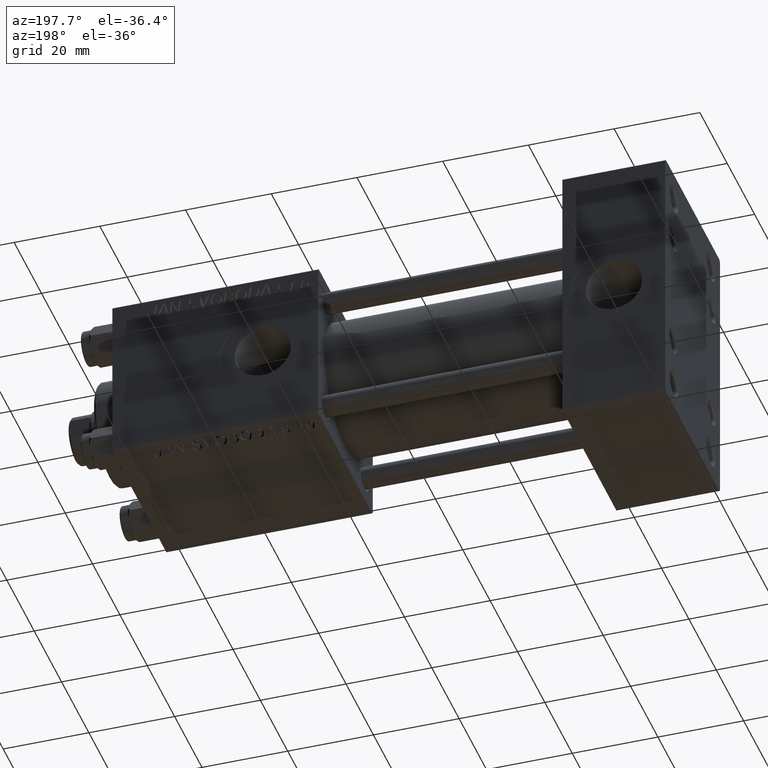
[diagram: clean part render]
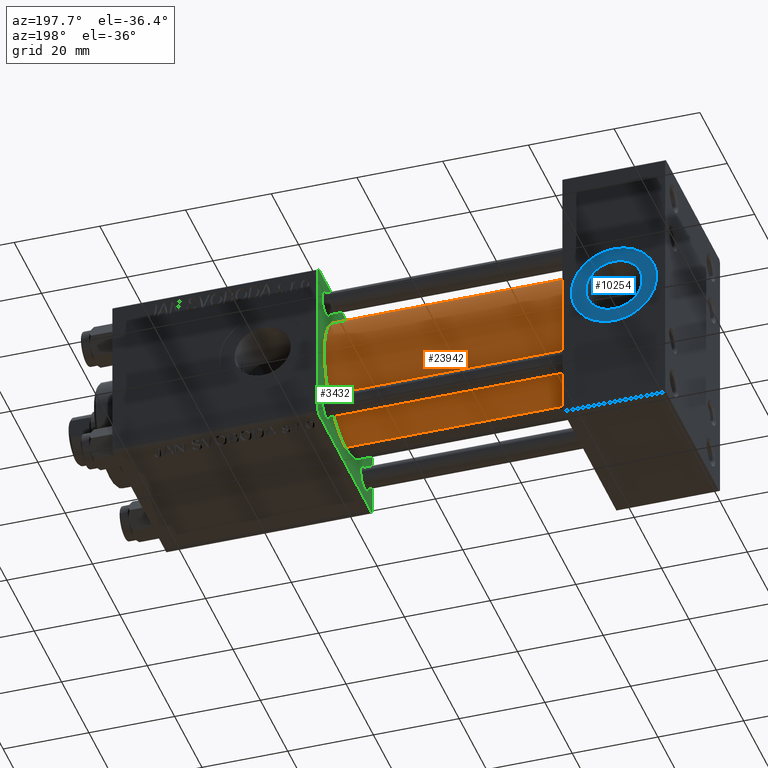
[diagram: same view with three faces highlighted in distinct colors, each labeled with its STEP entity id]
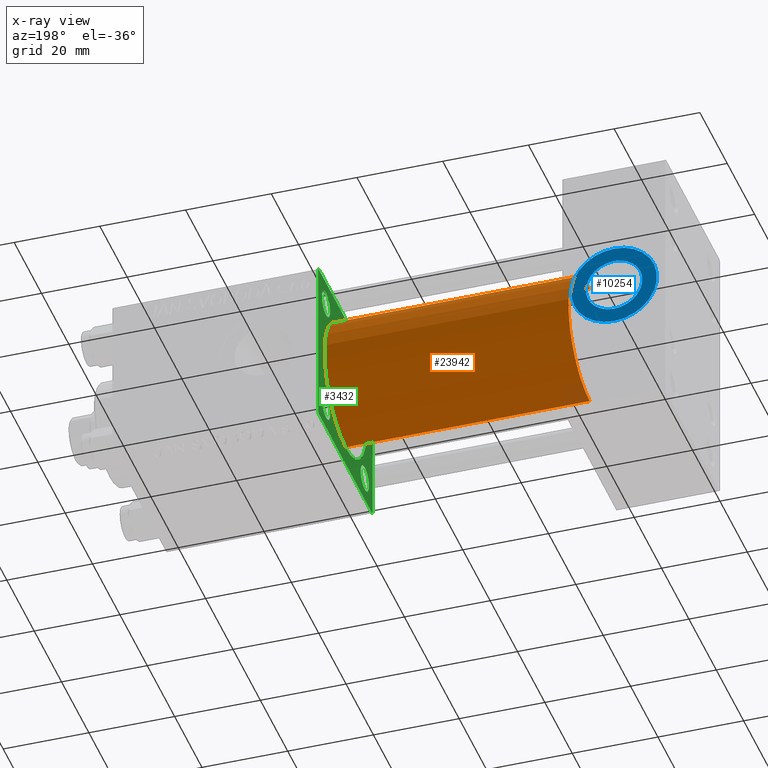
[diagram: x-ray of the same camera — body ghosted, the three highlighted faces saturated]
A machine part, auxiliary view with three faces highlighted in distinct colors.
The next image is the same camera in x-ray (body ghosted, the three faces saturated) — at least one of them is partly hidden behind the body in this view.
Their STEP definitions:

[orange] entity #23942 — the highlighted cylindrical surface (partial cylindrical patch) has radius 15.5 mm, axis along (-1, -0, -0).
#72 = EDGE_CURVE ( 'NONE', #4075, #43670, #28349, .T. ) ;
#3458 = ORIENTED_EDGE ( 'NONE', *, *, #72, .T. ) ;
#4075 = VERTEX_POINT ( 'NONE', #9993 ) ;
#4509 = CARTESIAN_POINT ( 'NONE',  ( 81.00000000000000000, -2.602085213965210642E-15, 15.50000000000000000 ) ) ;
#5151 = ORIENTED_EDGE ( 'NONE', *, *, #13991, .F. ) ;
#5420 = DIRECTION ( 'NONE',  ( 0.000000000000000000, 0.000000000000000000, 1.000000000000000000 ) ) ;
#6160 = ORIENTED_EDGE ( 'NONE', *, *, #17701, .F. ) ;
#9993 = CARTESIAN_POINT ( 'NONE',  ( 81.00000000000000000, -7.038826752868134786E-16, -15.50000000000000000 ) ) ;
#11087 = DIRECTION ( 'NONE',  ( 0.000000000000000000, 0.000000000000000000, -1.000000000000000000 ) ) ;
#11352 = ORIENTED_EDGE ( 'NONE', *, *, #48196, .T. ) ;
#11941 = CARTESIAN_POINT ( 'NONE',  ( 81.00000000000000000, -2.602085213965210642E-15, 0.000000000000000000 ) ) ;
#12437 = AXIS2_PLACEMENT_3D ( 'NONE', #12736, #32421, #5420 ) ;
#12736 = CARTESIAN_POINT ( 'NONE',  ( 24.00000000000000000, -2.602085213965210642E-15, 0.000000000000000000 ) ) ;
#13217 = CARTESIAN_POINT ( 'NONE',  ( 81.00000000000000000, -7.038826752868134786E-16, -15.50000000000000000 ) ) ;
#13888 = CARTESIAN_POINT ( 'NONE',  ( 24.00000000000000000, -7.038826752868134786E-16, -15.50000000000000000 ) ) ;
#13991 = EDGE_CURVE ( 'NONE', #4075, #31412, #46470, .T. ) ;
#14987 = FACE_OUTER_BOUND ( 'NONE', #36761, .T. ) ;
#17701 = EDGE_CURVE ( 'NONE', #31412, #43049, #49335, .T. ) ;
#18742 = CARTESIAN_POINT ( 'NONE',  ( 24.00000000000000000, -2.602085213965210642E-15, 15.50000000000000000 ) ) ;
#23942 = ADVANCED_FACE ( 'NONE', ( #14987 ), #39183, .T. ) ;
#24819 = DIRECTION ( 'NONE',  ( -1.000000000000000000, -0.000000000000000000, -0.000000000000000000 ) ) ;
#28349 = LINE ( 'NONE', #13217, #34827 ) ;
#29635 = CARTESIAN_POINT ( 'NONE',  ( 81.00000000000000000, -2.602085213965210642E-15, 15.50000000000000000 ) ) ;
#31412 = VERTEX_POINT ( 'NONE', #4509 ) ;
#32421 = DIRECTION ( 'NONE',  ( 1.000000000000000000, 0.000000000000000000, 0.000000000000000000 ) ) ;
#34827 = VECTOR ( 'NONE', #24819, 1000.000000000000000 ) ;
#36076 = VECTOR ( 'NONE', #44790, 1000.000000000000000 ) ;
#36761 = EDGE_LOOP ( 'NONE', ( #5151, #3458, #11352, #6160 ) ) ;
#36798 = AXIS2_PLACEMENT_3D ( 'NONE', #41887, #42377, #11087 ) ;
#38695 = DIRECTION ( 'NONE',  ( 0.000000000000000000, 0.000000000000000000, 1.000000000000000000 ) ) ;
#39041 = CIRCLE ( 'NONE', #12437, 15.50000000000000000 ) ;
#39183 = CYLINDRICAL_SURFACE ( 'NONE', #40005, 15.50000000000000000 ) ;
#40005 = AXIS2_PLACEMENT_3D ( 'NONE', #11941, #49572, #38695 ) ;
#41887 = CARTESIAN_POINT ( 'NONE',  ( 81.00000000000000000, -2.602085213965210642E-15, 0.000000000000000000 ) ) ;
#42377 = DIRECTION ( 'NONE',  ( 1.000000000000000000, 0.000000000000000000, 0.000000000000000000 ) ) ;
#43049 = VERTEX_POINT ( 'NONE', #18742 ) ;
#43670 = VERTEX_POINT ( 'NONE', #13888 ) ;
#44790 = DIRECTION ( 'NONE',  ( -1.000000000000000000, -0.000000000000000000, -0.000000000000000000 ) ) ;
#46470 = CIRCLE ( 'NONE', #36798, 15.50000000000000000 ) ;
#48196 = EDGE_CURVE ( 'NONE', #43670, #43049, #39041, .T. ) ;
#49335 = LINE ( 'NONE', #29635, #36076 ) ;
#49572 = DIRECTION ( 'NONE',  ( -1.000000000000000000, -0.000000000000000000, -0.000000000000000000 ) ) ;

[blue] entity #10254 — the highlighted planar face has unit normal (0, 1, 0).
#203 = DIRECTION ( 'NONE',  ( 0.000000000000000000, 0.000000000000000000, 1.000000000000000000 ) ) ;
#310 = AXIS2_PLACEMENT_3D ( 'NONE', #17504, #32913, #29107 ) ;
#698 = CARTESIAN_POINT ( 'NONE',  ( 12.00000000000000000, 19.79999999999999716, 0.000000000000000000 ) ) ;
#2087 = ORIENTED_EDGE ( 'NONE', *, *, #25077, .T. ) ;
#2274 = ORIENTED_EDGE ( 'NONE', *, *, #45952, .T. ) ;
#2722 = VERTEX_POINT ( 'NONE', #25251 ) ;
#3083 = VERTEX_POINT ( 'NONE', #44069 ) ;
#3564 = CIRCLE ( 'NONE', #310, 6.579999999999998295 ) ;
#4143 = FACE_OUTER_BOUND ( 'NONE', #31945, .T. ) ;
#4339 = EDGE_CURVE ( 'NONE', #31469, #20534, #3564, .T. ) ;
#4634 = FACE_BOUND ( 'NONE', #12507, .T. ) ;
#5948 = ORIENTED_EDGE ( 'NONE', *, *, #45120, .F. ) ;
#10254 = ADVANCED_FACE ( 'NONE', ( #4634, #4143 ), #24295, .T. ) ;
#10553 = ORIENTED_EDGE ( 'NONE', *, *, #4339, .F. ) ;
#10818 = DIRECTION ( 'NONE',  ( 0.000000000000000000, 0.000000000000000000, 1.000000000000000000 ) ) ;
#11423 = DIRECTION ( 'NONE',  ( 0.000000000000000000, 1.000000000000000000, 0.000000000000000000 ) ) ;
#12507 = EDGE_LOOP ( 'NONE', ( #5948, #10553 ) ) ;
#15362 = DIRECTION ( 'NONE',  ( 0.000000000000000000, 1.000000000000000000, 0.000000000000000000 ) ) ;
#17109 = CIRCLE ( 'NONE', #20341, 10.00000000000000000 ) ;
#17504 = CARTESIAN_POINT ( 'NONE',  ( 12.00000000000000000, 19.79999999999999716, 0.000000000000000000 ) ) ;
#19490 = CIRCLE ( 'NONE', #37218, 6.579999999999998295 ) ;
#19615 = DIRECTION ( 'NONE',  ( 0.000000000000000000, 1.000000000000000000, 0.000000000000000000 ) ) ;
#19710 = AXIS2_PLACEMENT_3D ( 'NONE', #38967, #23560, #27356 ) ;
#20341 = AXIS2_PLACEMENT_3D ( 'NONE', #49948, #15362, #10818 ) ;
#20534 = VERTEX_POINT ( 'NONE', #43806 ) ;
#23560 = DIRECTION ( 'NONE',  ( 0.000000000000000000, 1.000000000000000000, 0.000000000000000000 ) ) ;
#24295 = PLANE ( 'NONE',  #19710 ) ;
#25077 = EDGE_CURVE ( 'NONE', #2722, #3083, #40039, .T. ) ;
#25251 = CARTESIAN_POINT ( 'NONE',  ( 12.00000000000000178, 19.79999999999999716, -10.00000000000000000 ) ) ;
#27356 = DIRECTION ( 'NONE',  ( 0.000000000000000000, -0.000000000000000000, 1.000000000000000000 ) ) ;
#29107 = DIRECTION ( 'NONE',  ( 0.000000000000000000, 0.000000000000000000, 1.000000000000000000 ) ) ;
#31469 = VERTEX_POINT ( 'NONE', #37271 ) ;
#31945 = EDGE_LOOP ( 'NONE', ( #2274, #2087 ) ) ;
#32913 = DIRECTION ( 'NONE',  ( 0.000000000000000000, 1.000000000000000000, 0.000000000000000000 ) ) ;
#37218 = AXIS2_PLACEMENT_3D ( 'NONE', #698, #19615, #203 ) ;
#37271 = CARTESIAN_POINT ( 'NONE',  ( 12.00000000000000000, 19.79999999999999716, -6.579999999999998295 ) ) ;
#38967 = CARTESIAN_POINT ( 'NONE',  ( 12.00000000000000000, 19.79999999999999716, 0.000000000000000000 ) ) ;
#40039 = CIRCLE ( 'NONE', #41673, 10.00000000000000000 ) ;
#41673 = AXIS2_PLACEMENT_3D ( 'NONE', #44999, #11423, #49795 ) ;
#43806 = CARTESIAN_POINT ( 'NONE',  ( 12.00000000000000000, 19.79999999999999716, 6.579999999999998295 ) ) ;
#44069 = CARTESIAN_POINT ( 'NONE',  ( 12.00000000000000000, 19.79999999999999716, 10.00000000000000000 ) ) ;
#44999 = CARTESIAN_POINT ( 'NONE',  ( 12.00000000000000000, 19.79999999999999716, 0.000000000000000000 ) ) ;
#45120 = EDGE_CURVE ( 'NONE', #20534, #31469, #19490, .T. ) ;
#45952 = EDGE_CURVE ( 'NONE', #3083, #2722, #17109, .T. ) ;
#49795 = DIRECTION ( 'NONE',  ( 0.000000000000000000, 0.000000000000000000, 1.000000000000000000 ) ) ;
#49948 = CARTESIAN_POINT ( 'NONE',  ( 12.00000000000000000, 19.79999999999999716, 0.000000000000000000 ) ) ;

[green] entity #3432 — the highlighted planar face has unit normal (-1, 0, 0).
#34 = LINE ( 'NONE', #23720, #12760 ) ;
#177 = ORIENTED_EDGE ( 'NONE', *, *, #3962, .T. ) ;
#199 = DIRECTION ( 'NONE',  ( 1.000000000000000000, 0.000000000000000000, 0.000000000000000000 ) ) ;
#456 = LINE ( 'NONE', #47132, #16834 ) ;
#472 = DIRECTION ( 'NONE',  ( 0.000000000000000000, -1.000000000000000000, 0.000000000000000000 ) ) ;
#566 = AXIS2_PLACEMENT_3D ( 'NONE', #46508, #19973, #19479 ) ;
#590 = VECTOR ( 'NONE', #20744, 1000.000000000000000 ) ;
#679 = DIRECTION ( 'NONE',  ( 1.000000000000000000, 0.000000000000000000, 0.000000000000000000 ) ) ;
#719 = CIRCLE ( 'NONE', #23189, 2.999999999999973355 ) ;
#1119 = DIRECTION ( 'NONE',  ( 0.000000000000000000, 0.000000000000000000, 1.000000000000000000 ) ) ;
#1399 = EDGE_CURVE ( 'NONE', #43385, #38712, #10718, .T. ) ;
#1579 = CARTESIAN_POINT ( 'NONE',  ( 81.00000000000000000, 14.15000000000000036, 14.15000000000000036 ) ) ;
#1591 = EDGE_LOOP ( 'NONE', ( #12753, #46845, #4909, #4346, #39925, #11893, #27125, #20661 ) ) ;
#1910 = VERTEX_POINT ( 'NONE', #43525 ) ;
#2163 = CARTESIAN_POINT ( 'NONE',  ( 81.00000000000000000, 14.15000000000000036, -11.15000000000001101 ) ) ;
#2986 = EDGE_CURVE ( 'NONE', #31412, #4075, #27676, .T. ) ;
#3432 = ADVANCED_FACE ( 'NONE', ( #14914, #18936, #33585, #6832, #14660, #49246 ), #37375, .T. ) ;
#3962 = EDGE_CURVE ( 'NONE', #32750, #39260, #44653, .T. ) ;
#4075 = VERTEX_POINT ( 'NONE', #9993 ) ;
#4139 = DIRECTION ( 'NONE',  ( -0.000000000000000000, -0.7071067811865474617, -0.7071067811865474617 ) ) ;
#4346 = ORIENTED_EDGE ( 'NONE', *, *, #14124, .T. ) ;
#4370 = CARTESIAN_POINT ( 'NONE',  ( 81.00000000000000000, 19.99999999999999645, 20.00000000000000000 ) ) ;
#4404 = VERTEX_POINT ( 'NONE', #42232 ) ;
#4509 = CARTESIAN_POINT ( 'NONE',  ( 81.00000000000000000, -2.602085213965210642E-15, 15.50000000000000000 ) ) ;
#4909 = ORIENTED_EDGE ( 'NONE', *, *, #29205, .F. ) ;
#4995 = LINE ( 'NONE', #8534, #29504 ) ;
#5603 = VERTEX_POINT ( 'NONE', #22811 ) ;
#6616 = ORIENTED_EDGE ( 'NONE', *, *, #33513, .T. ) ;
#6832 = FACE_BOUND ( 'NONE', #45453, .T. ) ;
#7481 = AXIS2_PLACEMENT_3D ( 'NONE', #1579, #48493, #9876 ) ;
#7568 = CARTESIAN_POINT ( 'NONE',  ( 81.00000000000000000, -20.00000000000000355, 19.49999999999999645 ) ) ;
#7725 = CARTESIAN_POINT ( 'NONE',  ( 81.00000000000000000, 19.99999999999999645, 19.50000000000002842 ) ) ;
#7882 = ORIENTED_EDGE ( 'NONE', *, *, #45774, .T. ) ;
#8020 = CARTESIAN_POINT ( 'NONE',  ( 81.00000000000000000, -2.602085213965210642E-15, 0.000000000000000000 ) ) ;
#8095 = CARTESIAN_POINT ( 'NONE',  ( 81.00000000000000000, 19.99999999999999645, -19.50000000000000000 ) ) ;
#8534 = CARTESIAN_POINT ( 'NONE',  ( 81.00000000000000000, -19.75000000000027711, 19.74999999999973355 ) ) ;
#8544 = VECTOR ( 'NONE', #472, 1000.000000000000000 ) ;
#8787 = EDGE_CURVE ( 'NONE', #22413, #12880, #22743, .T. ) ;
#9255 = CARTESIAN_POINT ( 'NONE',  ( 81.00000000000000000, 14.15000000000000036, -14.15000000000000036 ) ) ;
#9876 = DIRECTION ( 'NONE',  ( 0.000000000000000000, 0.000000000000000000, 1.000000000000000000 ) ) ;
#9993 = CARTESIAN_POINT ( 'NONE',  ( 81.00000000000000000, -7.038826752868134786E-16, -15.50000000000000000 ) ) ;
#10320 = DIRECTION ( 'NONE',  ( 0.000000000000000000, 0.000000000000000000, 1.000000000000000000 ) ) ;
#10417 = VERTEX_POINT ( 'NONE', #8095 ) ;
#10718 = CIRCLE ( 'NONE', #7481, 2.999999999999948930 ) ;
#10846 = ORIENTED_EDGE ( 'NONE', *, *, #49909, .T. ) ;
#11087 = DIRECTION ( 'NONE',  ( 0.000000000000000000, 0.000000000000000000, -1.000000000000000000 ) ) ;
#11140 = DIRECTION ( 'NONE',  ( 0.000000000000000000, 0.7071067811865474617, -0.7071067811865474617 ) ) ;
#11893 = ORIENTED_EDGE ( 'NONE', *, *, #8787, .T. ) ;
#12288 = DIRECTION ( 'NONE',  ( 0.000000000000000000, 0.000000000000000000, -1.000000000000000000 ) ) ;
#12322 = DIRECTION ( 'NONE',  ( -0.000000000000000000, 0.7071067811865378028, 0.7071067811865573427 ) ) ;
#12518 = EDGE_CURVE ( 'NONE', #26665, #1910, #31742, .T. ) ;
#12753 = ORIENTED_EDGE ( 'NONE', *, *, #12518, .T. ) ;
#12760 = VECTOR ( 'NONE', #35096, 999.9999999999998863 ) ;
#12794 = DIRECTION ( 'NONE',  ( 0.000000000000000000, 0.000000000000000000, 1.000000000000000000 ) ) ;
#12880 = VERTEX_POINT ( 'NONE', #7725 ) ;
#13147 = CIRCLE ( 'NONE', #41372, 2.999999999999990674 ) ;
#13470 = DIRECTION ( 'NONE',  ( 1.000000000000000000, 0.000000000000000000, 0.000000000000000000 ) ) ;
#13991 = EDGE_CURVE ( 'NONE', #4075, #31412, #46470, .T. ) ;
#14124 = EDGE_CURVE ( 'NONE', #24538, #42047, #4995, .T. ) ;
#14333 = DIRECTION ( 'NONE',  ( 1.000000000000000000, 0.000000000000000000, 0.000000000000000000 ) ) ;
#14527 = ORIENTED_EDGE ( 'NONE', *, *, #25264, .T. ) ;
#14568 = CIRCLE ( 'NONE', #41989, 2.999999999999973355 ) ;
#14584 = CARTESIAN_POINT ( 'NONE',  ( 81.00000000000000000, -14.15000000000000036, 14.15000000000000036 ) ) ;
#14660 = FACE_BOUND ( 'NONE', #48078, .T. ) ;
#14914 = FACE_BOUND ( 'NONE', #49522, .T. ) ;
#15392 = VERTEX_POINT ( 'NONE', #31455 ) ;
#15590 = AXIS2_PLACEMENT_3D ( 'NONE', #8020, #199, #12288 ) ;
#16218 = EDGE_CURVE ( 'NONE', #12880, #10417, #35650, .T. ) ;
#16518 = VERTEX_POINT ( 'NONE', #22370 ) ;
#16834 = VECTOR ( 'NONE', #31237, 1000.000000000000000 ) ;
#17066 = DIRECTION ( 'NONE',  ( 0.000000000000000000, 8.673617379884036705E-17, -1.000000000000000000 ) ) ;
#17248 = CARTESIAN_POINT ( 'NONE',  ( 81.00000000000000000, -14.15000000000000036, -14.15000000000000036 ) ) ;
#17938 = EDGE_CURVE ( 'NONE', #10417, #26665, #23319, .T. ) ;
#18042 = VECTOR ( 'NONE', #11140, 1000.000000000000114 ) ;
#18936 = FACE_BOUND ( 'NONE', #25488, .T. ) ;
#19011 = EDGE_CURVE ( 'NONE', #5603, #15392, #44175, .T. ) ;
#19479 = DIRECTION ( 'NONE',  ( 0.000000000000000000, 0.000000000000000000, 1.000000000000000000 ) ) ;
#19480 = ORIENTED_EDGE ( 'NONE', *, *, #19011, .T. ) ;
#19973 = DIRECTION ( 'NONE',  ( 1.000000000000000000, 0.000000000000000000, 0.000000000000000000 ) ) ;
#20661 = ORIENTED_EDGE ( 'NONE', *, *, #17938, .T. ) ;
#20744 = DIRECTION ( 'NONE',  ( 0.000000000000000000, 0.000000000000000000, -1.000000000000000000 ) ) ;
#21668 = CARTESIAN_POINT ( 'NONE',  ( 81.00000000000000000, 19.50000000000002487, 20.00000000000000000 ) ) ;
#21893 = DIRECTION ( 'NONE',  ( 0.000000000000000000, 0.000000000000000000, 1.000000000000000000 ) ) ;
#22229 = CARTESIAN_POINT ( 'NONE',  ( 81.00000000000000000, 0.000000000000000000, 0.000000000000000000 ) ) ;
#22370 = CARTESIAN_POINT ( 'NONE',  ( 81.00000000000000000, -14.15000000000000036, 11.15000000000002700 ) ) ;
#22413 = VERTEX_POINT ( 'NONE', #21668 ) ;
#22422 = AXIS2_PLACEMENT_3D ( 'NONE', #24122, #679, #35741 ) ;
#22743 = LINE ( 'NONE', #45725, #18042 ) ;
#22811 = CARTESIAN_POINT ( 'NONE',  ( 81.00000000000000000, -14.15000000000000036, -11.15000000000001101 ) ) ;
#23189 = AXIS2_PLACEMENT_3D ( 'NONE', #14584, #14333, #21893 ) ;
#23255 = VECTOR ( 'NONE', #17066, 1000.000000000000000 ) ;
#23319 = LINE ( 'NONE', #38714, #49813 ) ;
#23720 = CARTESIAN_POINT ( 'NONE',  ( 81.00000000000000000, -19.74999999999972644, -19.75000000000027356 ) ) ;
#24122 = CARTESIAN_POINT ( 'NONE',  ( 81.00000000000000000, -14.15000000000000036, -14.15000000000000036 ) ) ;
#24306 = CARTESIAN_POINT ( 'NONE',  ( 81.00000000000000000, -19.50000000000001776, 19.99999999999999645 ) ) ;
#24538 = VERTEX_POINT ( 'NONE', #7568 ) ;
#25264 = EDGE_CURVE ( 'NONE', #38712, #43385, #35217, .T. ) ;
#25488 = EDGE_LOOP ( 'NONE', ( #14527, #47774 ) ) ;
#25763 = DIRECTION ( 'NONE',  ( -0.000000000000000000, 0.000000000000000000, 1.000000000000000000 ) ) ;
#26205 = CARTESIAN_POINT ( 'NONE',  ( 81.00000000000000000, 19.49999999999999645, -20.00000000000000000 ) ) ;
#26665 = VERTEX_POINT ( 'NONE', #26205 ) ;
#26671 = ORIENTED_EDGE ( 'NONE', *, *, #38720, .T. ) ;
#27125 = ORIENTED_EDGE ( 'NONE', *, *, #16218, .T. ) ;
#27323 = CIRCLE ( 'NONE', #46685, 2.999999999999990674 ) ;
#27463 = CARTESIAN_POINT ( 'NONE',  ( 81.00000000000000000, 19.99999999999999645, -20.00000000000000000 ) ) ;
#27676 = CIRCLE ( 'NONE', #15590, 15.50000000000000000 ) ;
#27836 = DIRECTION ( 'NONE',  ( 0.000000000000000000, 0.000000000000000000, 1.000000000000000000 ) ) ;
#28726 = CARTESIAN_POINT ( 'NONE',  ( 81.00000000000000000, 14.15000000000000036, -17.14999999999999147 ) ) ;
#28769 = CARTESIAN_POINT ( 'NONE',  ( 81.00000000000000000, -20.00000000000000000, -19.50000000000001066 ) ) ;
#29205 = EDGE_CURVE ( 'NONE', #24538, #39714, #35512, .T. ) ;
#29504 = VECTOR ( 'NONE', #12322, 1000.000000000000000 ) ;
#29964 = EDGE_CURVE ( 'NONE', #1910, #39714, #34, .T. ) ;
#30557 = DIRECTION ( 'NONE',  ( -1.000000000000000000, 0.000000000000000000, -0.000000000000000000 ) ) ;
#31237 = DIRECTION ( 'NONE',  ( 0.000000000000000000, -1.000000000000000000, -8.673617379884035472E-17 ) ) ;
#31412 = VERTEX_POINT ( 'NONE', #4509 ) ;
#31455 = CARTESIAN_POINT ( 'NONE',  ( 81.00000000000000000, -14.15000000000000036, -17.14999999999999147 ) ) ;
#31742 = LINE ( 'NONE', #27463, #8544 ) ;
#32750 = VERTEX_POINT ( 'NONE', #28726 ) ;
#33513 = EDGE_CURVE ( 'NONE', #15392, #5603, #27323, .T. ) ;
#33585 = FACE_BOUND ( 'NONE', #45778, .T. ) ;
#33846 = EDGE_CURVE ( 'NONE', #22413, #42047, #456, .T. ) ;
#34170 = AXIS2_PLACEMENT_3D ( 'NONE', #22229, #30557, #25763 ) ;
#35096 = DIRECTION ( 'NONE',  ( 0.000000000000000000, -0.7071067811865574537, 0.7071067811865376918 ) ) ;
#35217 = CIRCLE ( 'NONE', #566, 2.999999999999948930 ) ;
#35512 = LINE ( 'NONE', #43327, #23255 ) ;
#35650 = LINE ( 'NONE', #4370, #590 ) ;
#35741 = DIRECTION ( 'NONE',  ( 0.000000000000000000, 0.000000000000000000, 1.000000000000000000 ) ) ;
#35921 = DIRECTION ( 'NONE',  ( 1.000000000000000000, 0.000000000000000000, 0.000000000000000000 ) ) ;
#36517 = DIRECTION ( 'NONE',  ( 1.000000000000000000, 0.000000000000000000, 0.000000000000000000 ) ) ;
#36593 = AXIS2_PLACEMENT_3D ( 'NONE', #9255, #36517, #12794 ) ;
#36798 = AXIS2_PLACEMENT_3D ( 'NONE', #41887, #42377, #11087 ) ;
#37375 = PLANE ( 'NONE',  #34170 ) ;
#38712 = VERTEX_POINT ( 'NONE', #39456 ) ;
#38714 = CARTESIAN_POINT ( 'NONE',  ( 81.00000000000000000, 19.74999999999999645, -19.74999999999999645 ) ) ;
#38720 = EDGE_CURVE ( 'NONE', #4404, #16518, #14568, .T. ) ;
#39260 = VERTEX_POINT ( 'NONE', #2163 ) ;
#39272 = ORIENTED_EDGE ( 'NONE', *, *, #13991, .T. ) ;
#39456 = CARTESIAN_POINT ( 'NONE',  ( 81.00000000000000000, 14.15000000000000036, 17.14999999999994884 ) ) ;
#39714 = VERTEX_POINT ( 'NONE', #28769 ) ;
#39925 = ORIENTED_EDGE ( 'NONE', *, *, #33846, .F. ) ;
#40859 = DIRECTION ( 'NONE',  ( 1.000000000000000000, 0.000000000000000000, 0.000000000000000000 ) ) ;
#41372 = AXIS2_PLACEMENT_3D ( 'NONE', #44398, #40859, #10320 ) ;
#41887 = CARTESIAN_POINT ( 'NONE',  ( 81.00000000000000000, -2.602085213965210642E-15, 0.000000000000000000 ) ) ;
#41989 = AXIS2_PLACEMENT_3D ( 'NONE', #47281, #35921, #27836 ) ;
#42047 = VERTEX_POINT ( 'NONE', #24306 ) ;
#42232 = CARTESIAN_POINT ( 'NONE',  ( 81.00000000000000000, -14.15000000000000036, 17.14999999999997726 ) ) ;
#42377 = DIRECTION ( 'NONE',  ( 1.000000000000000000, 0.000000000000000000, 0.000000000000000000 ) ) ;
#43327 = CARTESIAN_POINT ( 'NONE',  ( 81.00000000000000000, -20.00000000000000355, 19.99999999999999645 ) ) ;
#43385 = VERTEX_POINT ( 'NONE', #49240 ) ;
#43525 = CARTESIAN_POINT ( 'NONE',  ( 81.00000000000000000, -19.49999999999999645, -20.00000000000000000 ) ) ;
#44113 = ORIENTED_EDGE ( 'NONE', *, *, #2986, .T. ) ;
#44175 = CIRCLE ( 'NONE', #22422, 2.999999999999990674 ) ;
#44398 = CARTESIAN_POINT ( 'NONE',  ( 81.00000000000000000, 14.15000000000000036, -14.15000000000000036 ) ) ;
#44653 = CIRCLE ( 'NONE', #36593, 2.999999999999990674 ) ;
#45453 = EDGE_LOOP ( 'NONE', ( #19480, #6616 ) ) ;
#45725 = CARTESIAN_POINT ( 'NONE',  ( 81.00000000000000000, 19.75000000000001066, 19.75000000000001066 ) ) ;
#45774 = EDGE_CURVE ( 'NONE', #39260, #32750, #13147, .T. ) ;
#45778 = EDGE_LOOP ( 'NONE', ( #7882, #177 ) ) ;
#46470 = CIRCLE ( 'NONE', #36798, 15.50000000000000000 ) ;
#46508 = CARTESIAN_POINT ( 'NONE',  ( 81.00000000000000000, 14.15000000000000036, 14.15000000000000036 ) ) ;
#46685 = AXIS2_PLACEMENT_3D ( 'NONE', #17248, #13470, #1119 ) ;
#46845 = ORIENTED_EDGE ( 'NONE', *, *, #29964, .T. ) ;
#47132 = CARTESIAN_POINT ( 'NONE',  ( 81.00000000000000000, 19.99999999999999645, 20.00000000000000000 ) ) ;
#47281 = CARTESIAN_POINT ( 'NONE',  ( 81.00000000000000000, -14.15000000000000036, 14.15000000000000036 ) ) ;
#47774 = ORIENTED_EDGE ( 'NONE', *, *, #1399, .T. ) ;
#48078 = EDGE_LOOP ( 'NONE', ( #44113, #39272 ) ) ;
#48493 = DIRECTION ( 'NONE',  ( 1.000000000000000000, 0.000000000000000000, 0.000000000000000000 ) ) ;
#49240 = CARTESIAN_POINT ( 'NONE',  ( 81.00000000000000000, 14.15000000000000036, 11.15000000000005365 ) ) ;
#49246 = FACE_OUTER_BOUND ( 'NONE', #1591, .T. ) ;
#49522 = EDGE_LOOP ( 'NONE', ( #26671, #10846 ) ) ;
#49813 = VECTOR ( 'NONE', #4139, 1000.000000000000114 ) ;
#49909 = EDGE_CURVE ( 'NONE', #16518, #4404, #719, .T. ) ;